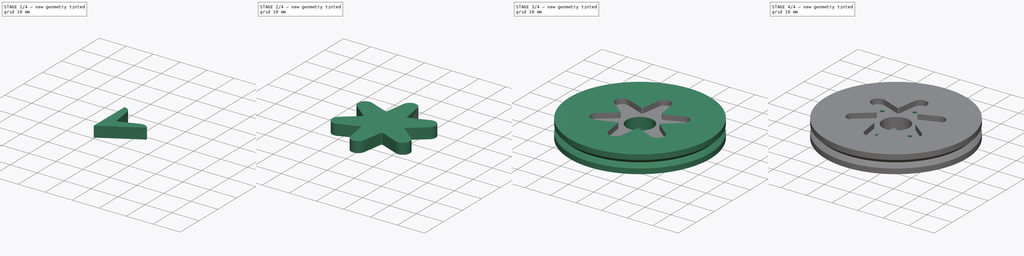
[diagram: build sequence overview — one tinted view per stage of 4, left to right]
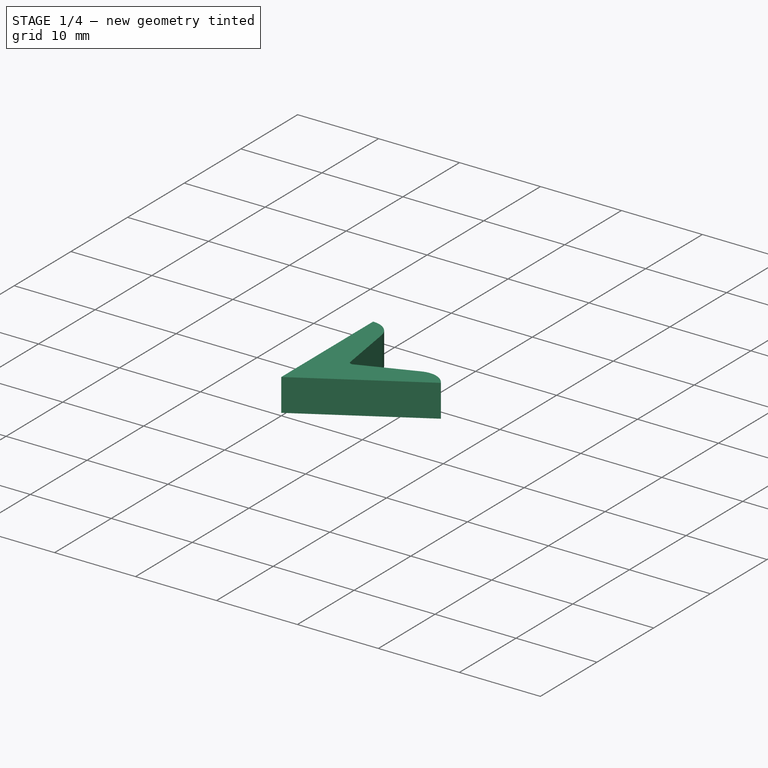
[diagram: stage 1 of 4 — iso view after this stage's code; geometry added in this stage tinted green]
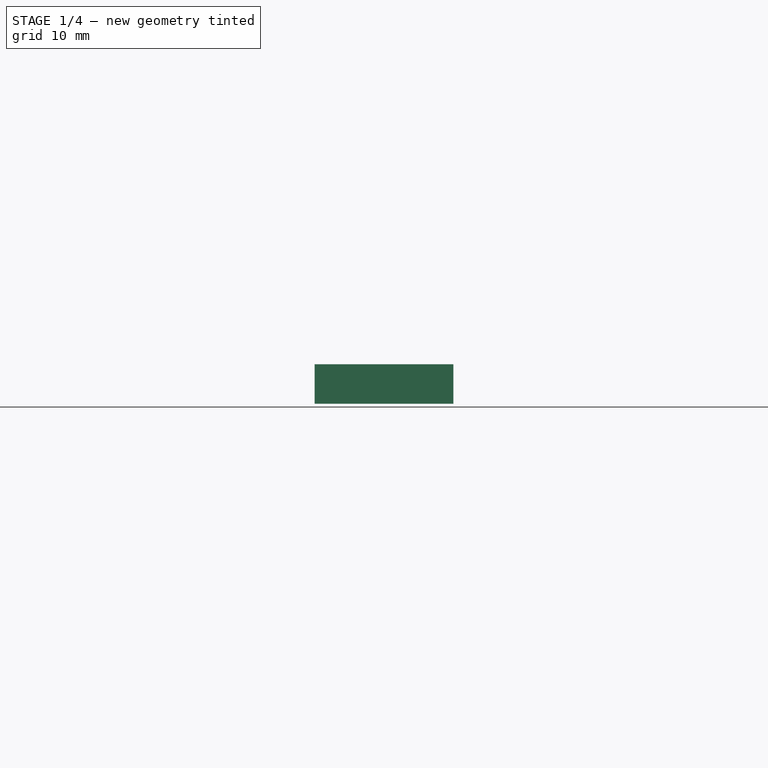
[diagram: stage 1 of 4 — front view after this stage's code; geometry added in this stage tinted green]
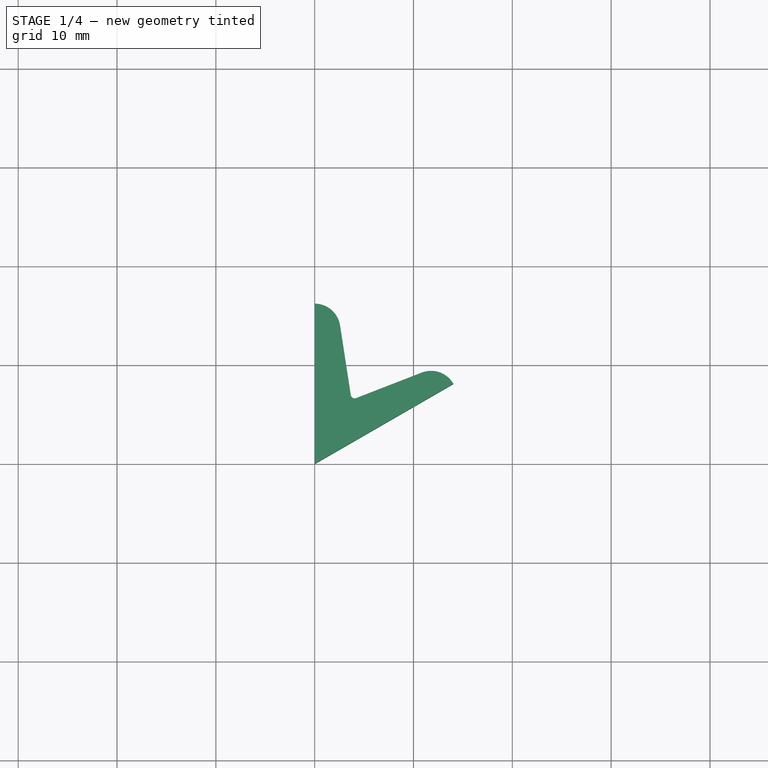
[diagram: stage 1 of 4 — top view after this stage's code; geometry added in this stage tinted green]
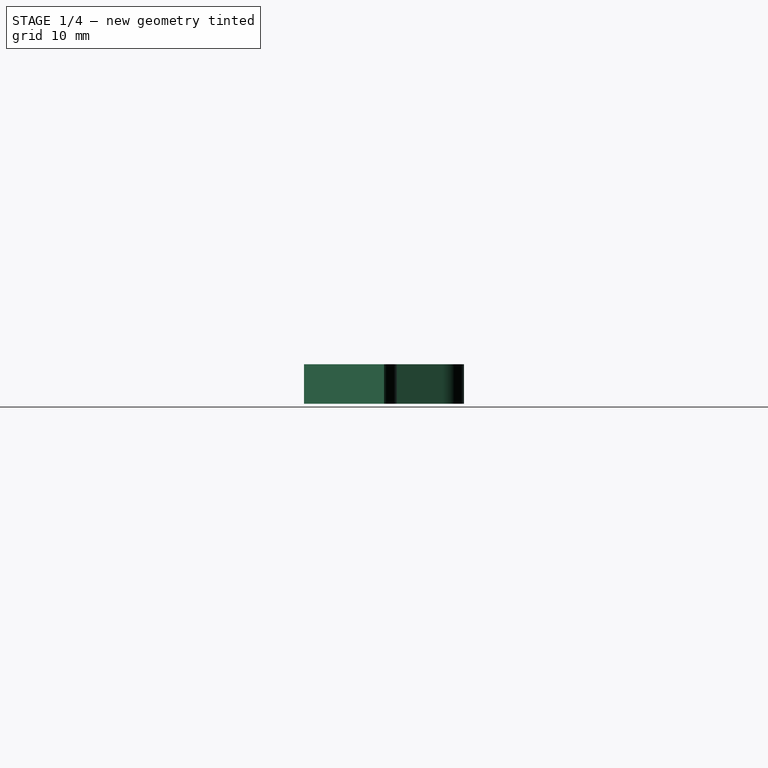
[diagram: stage 1 of 4 — right view after this stage's code; geometry added in this stage tinted green]
FCSTD DOCUMENT  (FreeCAD 0.14R3702 (Git))
Label: Miniskybot-wheel-futaba3003-6-arms-horn
License: CC-BY 3.0
LicenseURL: http://creativecommons.org/licenses/by/3.0/
objects: Sketcher::SketchObject×4, Part::Feature×3, Part::MultiFuse×2, PartDesign::Pocket×2, PartDesign::Revolution×1, PartDesign::Pad×1, Part::Mirroring×1, Part::Cut×1, PartDesign::PolarPattern×1
note: 20 computed .brp shape members not serialized (recipe doc carries the construction recipe); baked Part::Feature solids carry a one-line shape summary decoded from their .brp

FEATURE [Sketcher::SketchObject] Sketch001  label="6-arms-master-sketch-offset"
  sketch-geometry (8):
    g0: LineSegment StartX=0 StartY=0 StartZ=0 EndX=-14.0296 EndY=8.1 EndZ=0
    g1: LineSegment StartX=0 StartY=0 StartZ=0 EndX=0 EndY=16.2 EndZ=0
    g2: ArcOfCircle CenterX=0 CenterY=13.6 CenterZ=0 NormalX=0 NormalY=0 NormalZ=1 Radius=2.6 StartAngle=1.5708 EndAngle=2.98873
    g3: ArcOfCircle CenterX=-11.7779 CenterY=6.8 CenterZ=0 NormalX=0 NormalY=0 NormalZ=1 Radius=2.6 StartAngle=1.20006 EndAngle=2.61799
    g4: LineSegment [constr] StartX=-3.85 StartY=6.6684 StartZ=0 EndX=0 EndY=0 EndZ=0
    g5: LineSegment StartX=-2.56968 StartY=13.9959 StartZ=0 EndX=-3.65466 EndY=6.9539 EndZ=0
    g6: LineSegment StartX=-10.836 StartY=9.22336 StartZ=0 EndX=-4.19492 EndY=6.64198 EndZ=0
    g7: ArcOfCircle CenterX=-4.05 CenterY=7.01481 CenterZ=0 NormalX=0 NormalY=0 NormalZ=1 Radius=0.4 StartAngle=4.34166 EndAngle=6.13031
  constraints (24):
    c: Vertical(g1)
    c: Coincident(g1,g0)
    c: Coincident(g0,g-1)
    c: Angle(g1,g0) = 1.0472
    c: Equal(g0,g1)
    c: DistanceY(g1) = 16.2
    c: PointOnObject(g2,g1)
    c: Coincident(g2,g1)
    c: PointOnObject(g3,g0)
    c: Coincident(g3,g0)
    c: Coincident(g4,g-1)
    c: Angle(g1,g4) = 0.523599
    c: Distance(g4) = 7.7
    c: Equal(g3,g2)
    c: Coincident(g5,g2)
    c: Coincident(g6,g3)
    c: Tangent(g5,g7)
    c: Tangent(g6,g7)
    c: PointOnObject(g7,g4)
    c: PointOnObject(g4,g7)
    c: Radius(g7) = 0.4
    c: Tangent(g3,g6)
    c: Tangent(g2,g5)
    c: Radius(g2) = 2.6
FEATURE [PartDesign::Pad] Pad  label="6-arms-horn-one-sixth-master"
  Length = 4
  Length2 = 100
  Sketch = -> Sketch001
  Type = 0
FEATURE [Part::Mirroring] Part__Mirroring  label="6-arms-horn-one-sixth-master (Mirror #1)"
  Base = (0,0,0)
  Normal = (1,0,0)
  Source = -> Pad
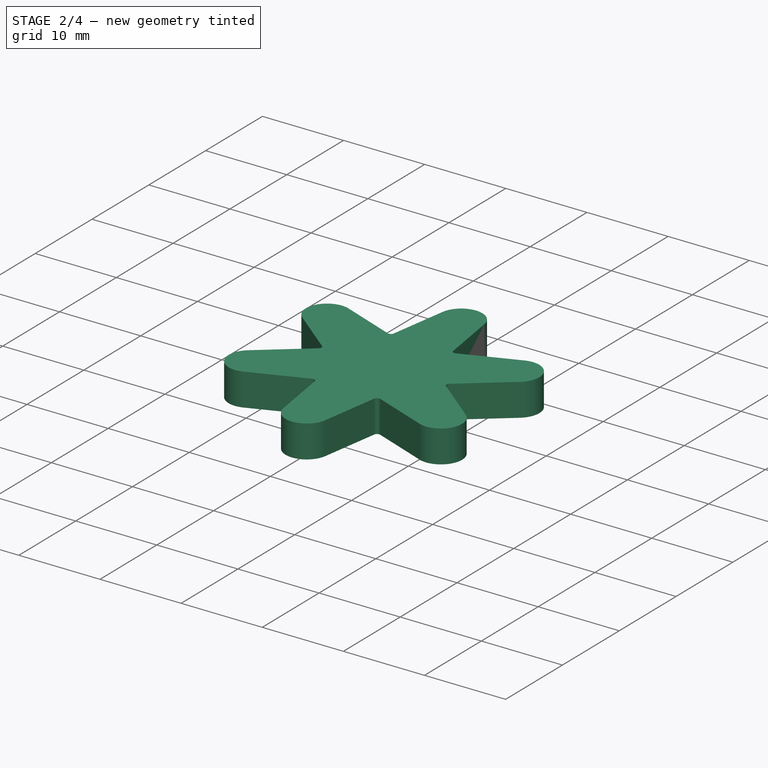
[diagram: stage 2 of 4 — iso view after this stage's code; geometry added in this stage tinted green]
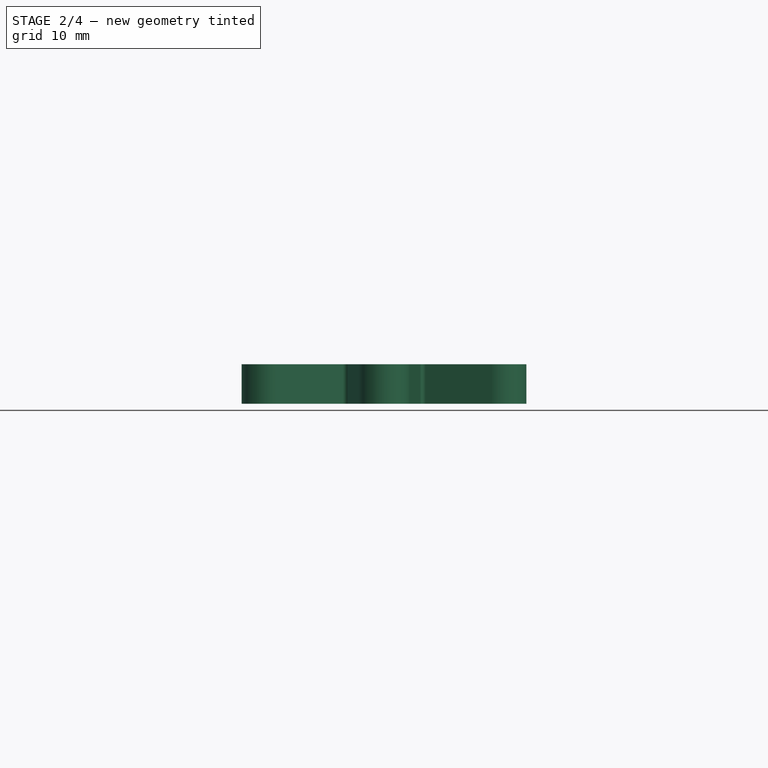
[diagram: stage 2 of 4 — front view after this stage's code; geometry added in this stage tinted green]
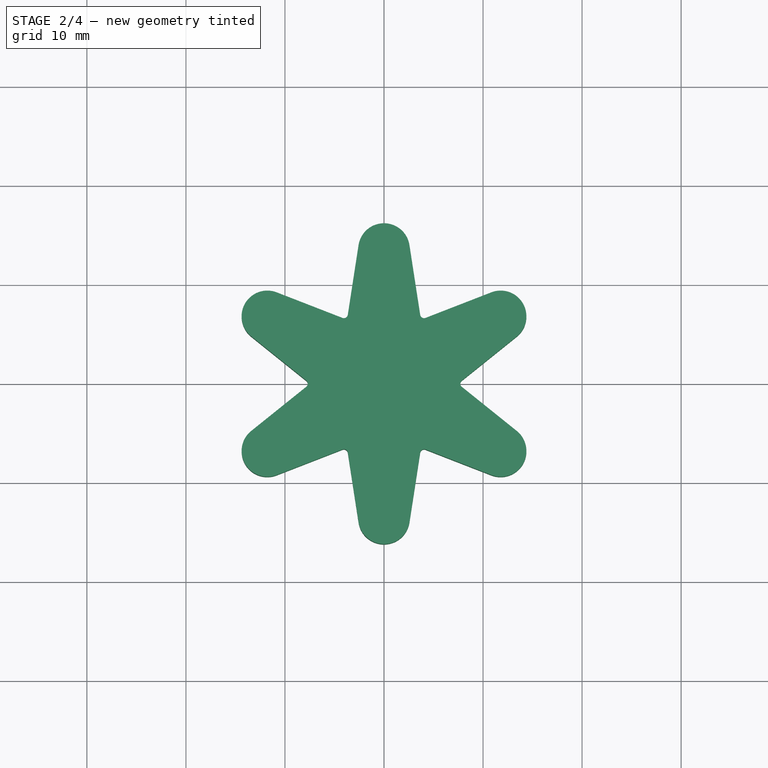
[diagram: stage 2 of 4 — top view after this stage's code; geometry added in this stage tinted green]
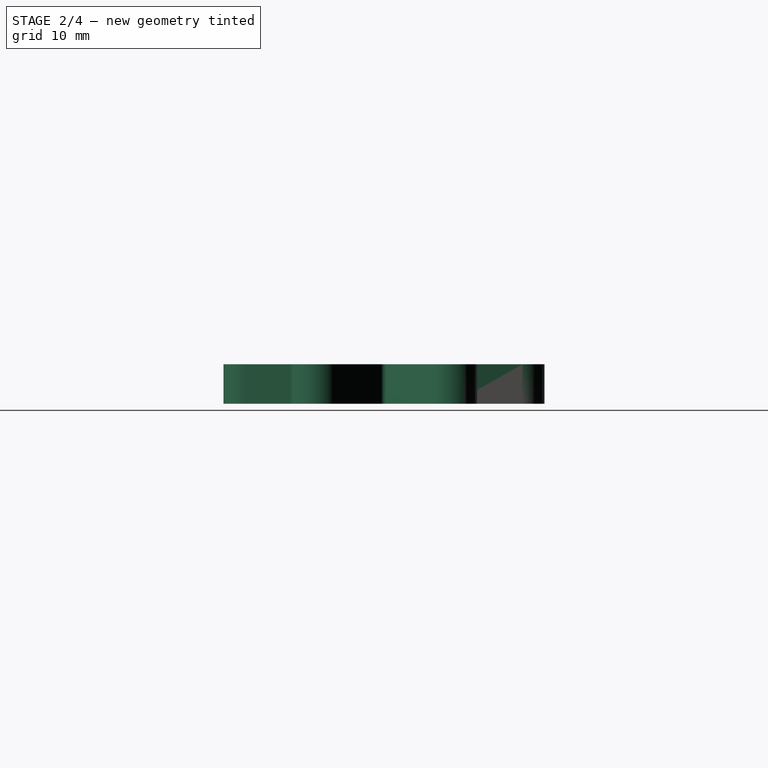
[diagram: stage 2 of 4 — right view after this stage's code; geometry added in this stage tinted green]
FEATURE [Part::MultiFuse] Fusion  label="6-arms-horn-one-third-master"
  Shapes = -> [Part__Mirroring,Pad]
FEATURE [Part::Feature] Fusion001  label="6-arms-horn-one-third-2"
  Placement = pos=(0,0,0) rot=(0,0,1;2.0944rad)
  shape: bbox 14.38 x 24.3 x 4 mm, 13 faces (baked)
FEATURE [Part::Feature] Fusion002  label="6-arms-horn-one-third-3"
  Placement = pos=(0,0,0) rot=(0,0,1;4.18879rad)
  shape: bbox 14.38 x 24.3 x 4 mm, 13 faces (baked)
FEATURE [Part::MultiFuse] Fusion003  label="6-arms-horn-master"
  Placement = pos=(0,0,1.5) rot=(0,0,1;0rad)
  Shapes = -> [Fusion,Fusion002,Fusion001]
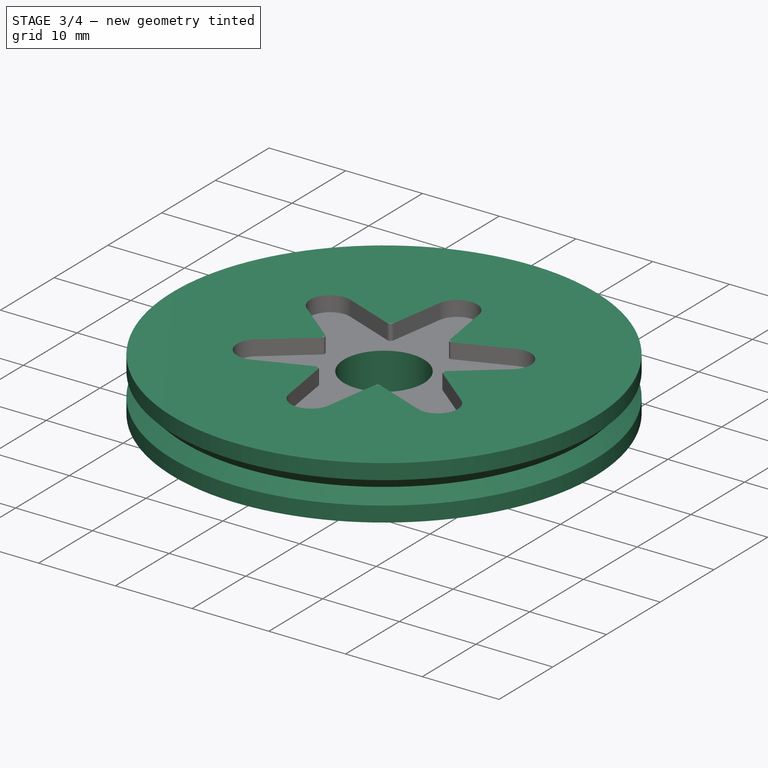
[diagram: stage 3 of 4 — iso view after this stage's code; geometry added in this stage tinted green]
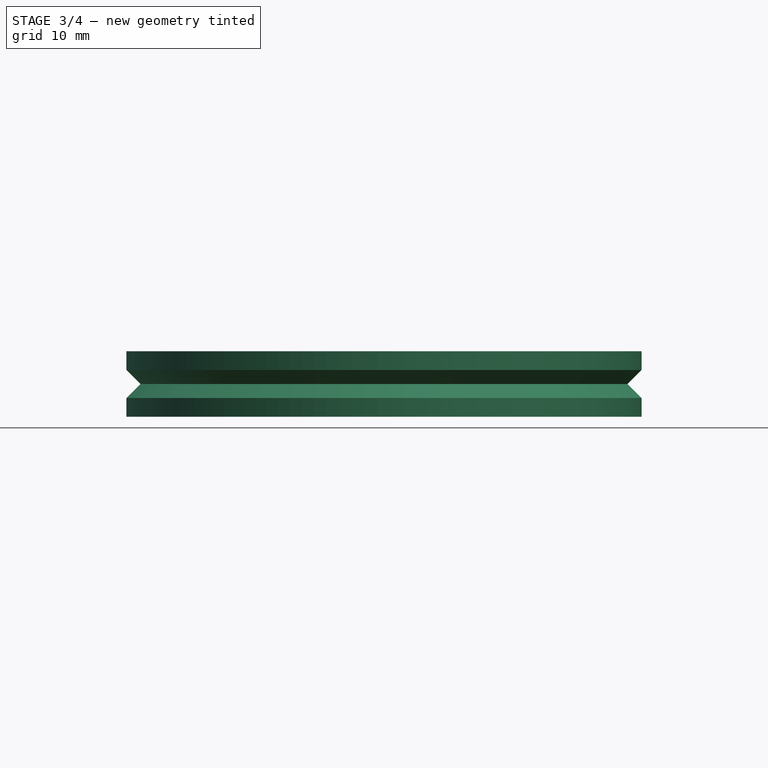
[diagram: stage 3 of 4 — front view after this stage's code; geometry added in this stage tinted green]
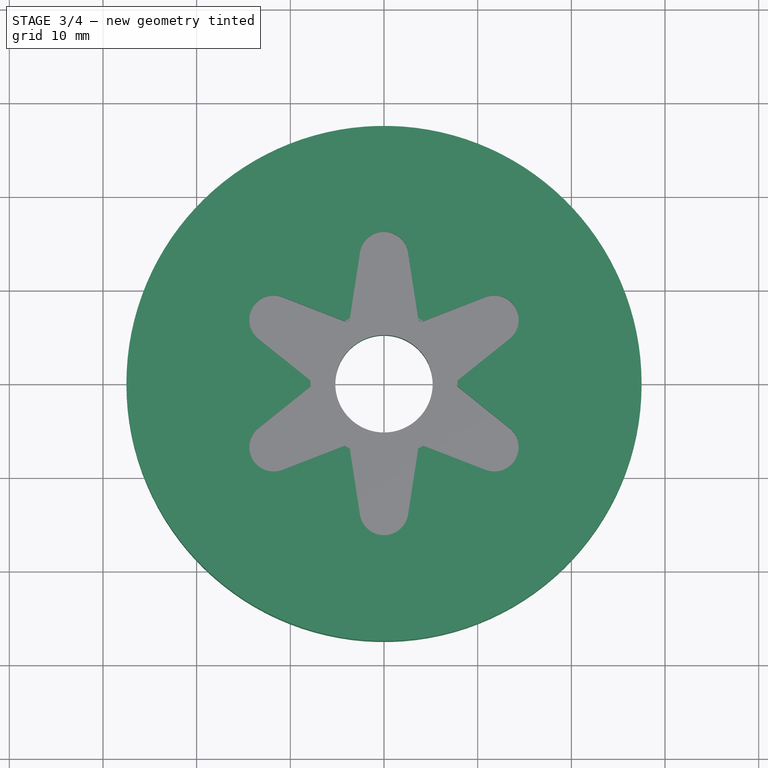
[diagram: stage 3 of 4 — top view after this stage's code; geometry added in this stage tinted green]
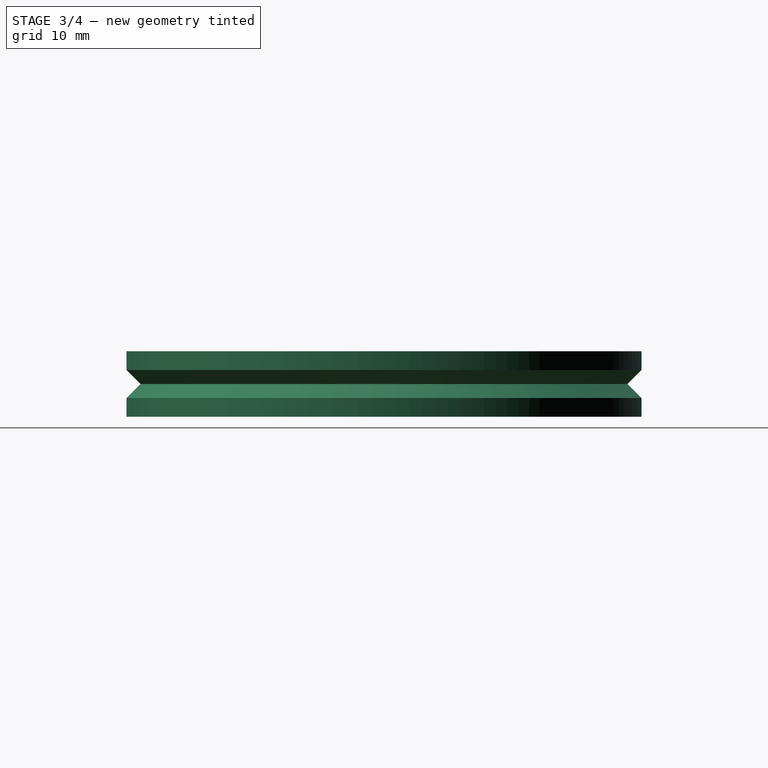
[diagram: stage 3 of 4 — right view after this stage's code; geometry added in this stage tinted green]
FEATURE [Sketcher::SketchObject] Sketch  label="wheel-generic-sketch"
  Placement = pos=(0,0,0) rot=(1,0,0;1.5708rad)
  sketch-geometry (7):
    g0: LineSegment StartX=0 StartY=-3.5 StartZ=0 EndX=0 EndY=3.5 EndZ=0
    g1: LineSegment StartX=0 StartY=3.5 StartZ=0 EndX=27.5 EndY=3.5 EndZ=0
    g2: LineSegment StartX=27.5 StartY=3.5 StartZ=0 EndX=27.5 EndY=1.5 EndZ=0
    g3: LineSegment StartX=27.5 StartY=1.5 StartZ=0 EndX=26 EndY=0 EndZ=0
    g4: LineSegment StartX=26 StartY=0 StartZ=0 EndX=27.5 EndY=-1.5 EndZ=0
    g5: LineSegment StartX=27.5 StartY=-1.5 StartZ=0 EndX=27.5 EndY=-3.5 EndZ=0
    g6: LineSegment StartX=27.5 StartY=-3.5 StartZ=0 EndX=0 EndY=-3.5 EndZ=0
  constraints (20):
    c: Vertical(g0)
    c: Coincident(g0,g1)
    c: Horizontal(g1)
    c: Coincident(g1,g2)
    c: Vertical(g2)
    c: Coincident(g2,g3)
    c: Coincident(g3,g4)
    c: Coincident(g4,g5)
    c: Coincident(g5,g6)
    c: Coincident(g6,g0)
    c: Horizontal(g6)
    c: Vertical(g5)
    c: PointOnObject(g0,g-2)
    c: Symmetric(g0,g0,g-1)
    c: PointOnObject(g3,g-1)
    c: Symmetric(g4,g2,g-1)
    c: Angle(g3,g-1) = 2.35619
    c: DistanceY(g4,g2) = 3
    c: DistanceX(g1) = 27.5
    c: DistanceY(g0) = 7
FEATURE [PartDesign::Revolution] Revolution  label="wheel-generic"
  Angle = 360
  Axis = (0,0,1)
  Base = (0,0,0)
  Placement = pos=(0,0,0) rot=(1,0,0;1.5708rad)
  ReferenceAxis = -> Sketch [V_Axis]
  Reversed = true
  Sketch = -> Sketch
FEATURE [Part::Cut] Cut  label="wheel-1"
  Base = -> Revolution
  Tool = -> Fusion003
FEATURE [Sketcher::SketchObject] Sketch004  label="shaft-drill-sketch"
  Placement = pos=(0,0,1.5) rot=(0,0,1;0rad)
  Support = -> Cut [Face30]
  sketch-geometry (1):
    g0: Circle CenterX=0 CenterY=0 CenterZ=0 NormalX=0 NormalY=0 NormalZ=1 Radius=5.2
  constraints (1):
    c: Radius(g0) = 5.2
FEATURE [PartDesign::Pocket] Pocket  label="shaft-drill"
  Length = 5
  Sketch = -> Sketch004
  Type = 1
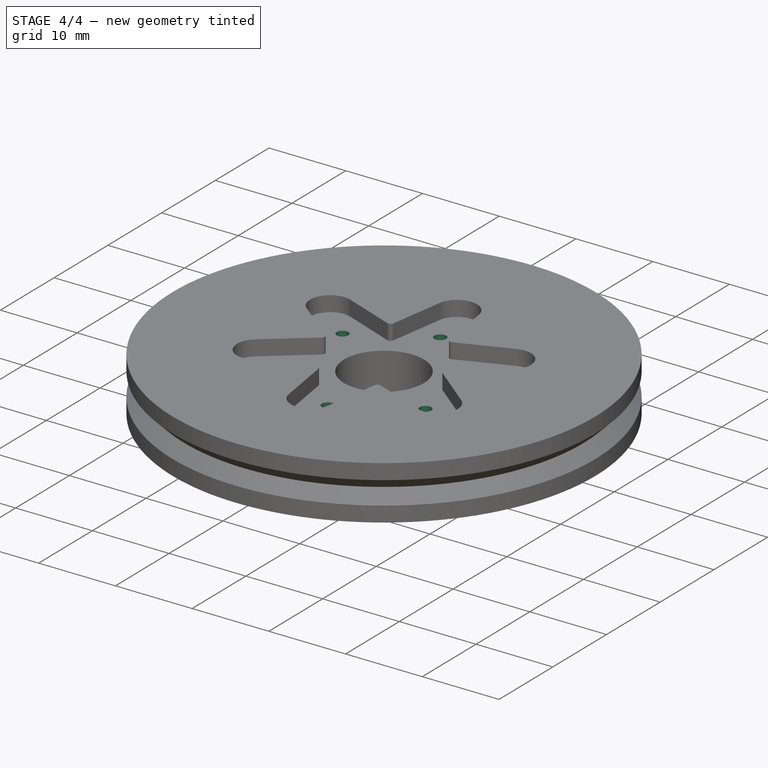
[diagram: stage 4 of 4 — iso view after this stage's code; geometry added in this stage tinted green]
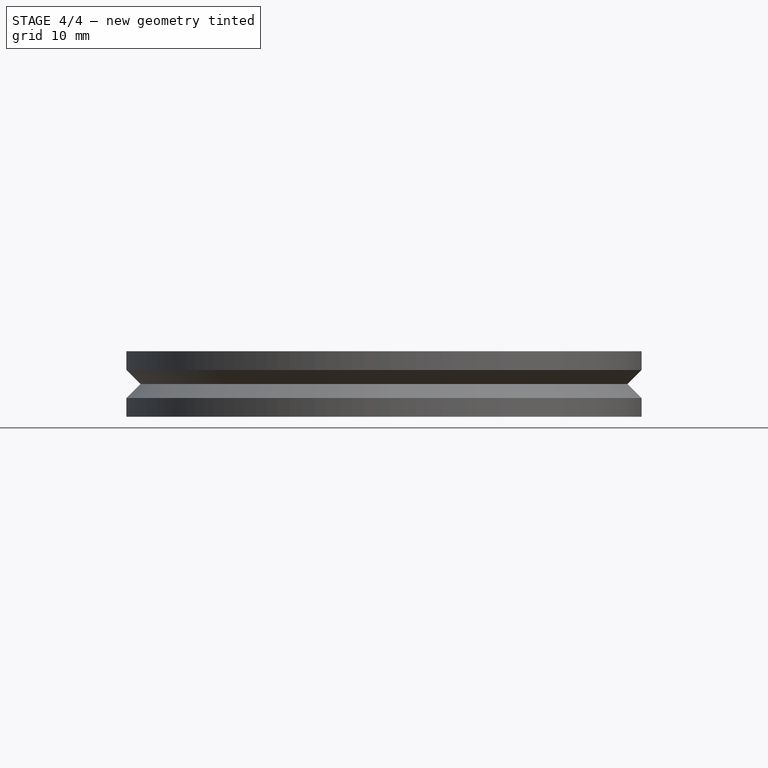
[diagram: stage 4 of 4 — front view after this stage's code; geometry added in this stage tinted green]
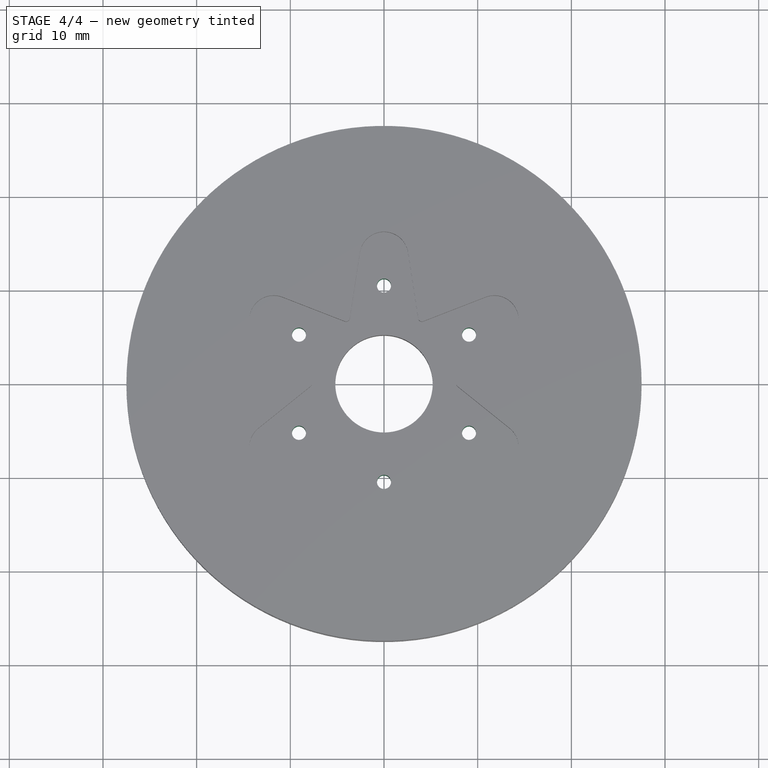
[diagram: stage 4 of 4 — top view after this stage's code; geometry added in this stage tinted green]
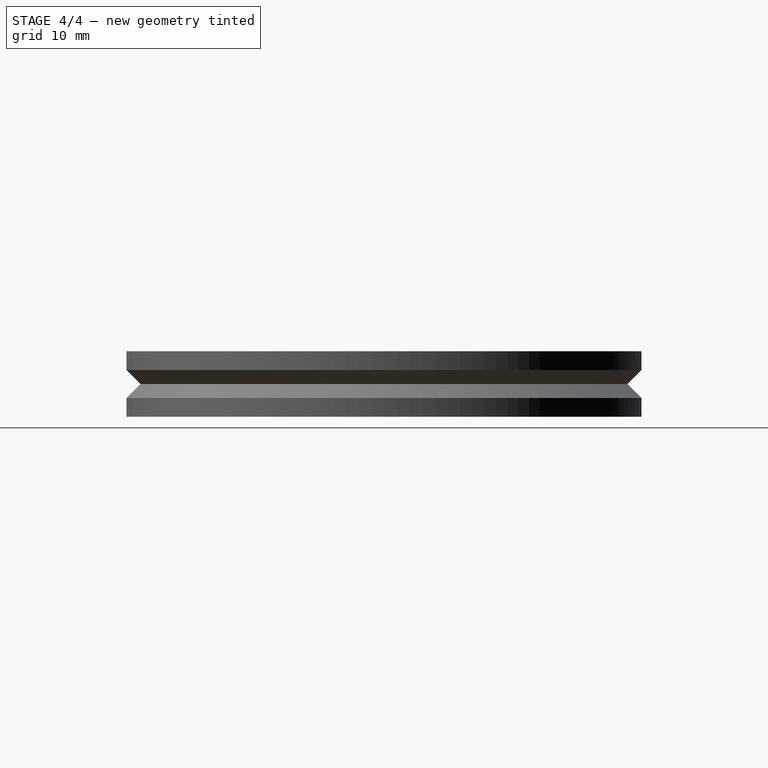
[diagram: stage 4 of 4 — right view after this stage's code; geometry added in this stage tinted green]
FEATURE [Sketcher::SketchObject] Sketch003  label="arm-drills-master-sketch"
  Placement = pos=(0,0,1.5) rot=(0,0,1;0rad)
  Support = -> Pocket [Face30]
  sketch-geometry (1):
    g0: Circle CenterX=0 CenterY=10.48 CenterZ=0 NormalX=0 NormalY=0 NormalZ=1 Radius=0.75
  constraints (3):
    c: PointOnObject(g0,g-2)
    c: DistanceY(g-1,g0) = 10.48
    c: Radius(g0) = 0.75
FEATURE [PartDesign::Pocket] Pocket001  label="arm-drill-master"
  Length = 5
  Sketch = -> Sketch003
  Type = 1
FEATURE [PartDesign::PolarPattern] PolarPattern
  Angle = 360
  Axis = -> Sketch003 [N_Axis]
  Occurrences = 6
  Originals = -> [Pocket001]
FEATURE [Part::Feature] PolarPattern001  label="Wheel-futaba-30036-6-arms-horn-final"
  shape: bbox 55 x 55 x 7 mm, 40 faces (baked)
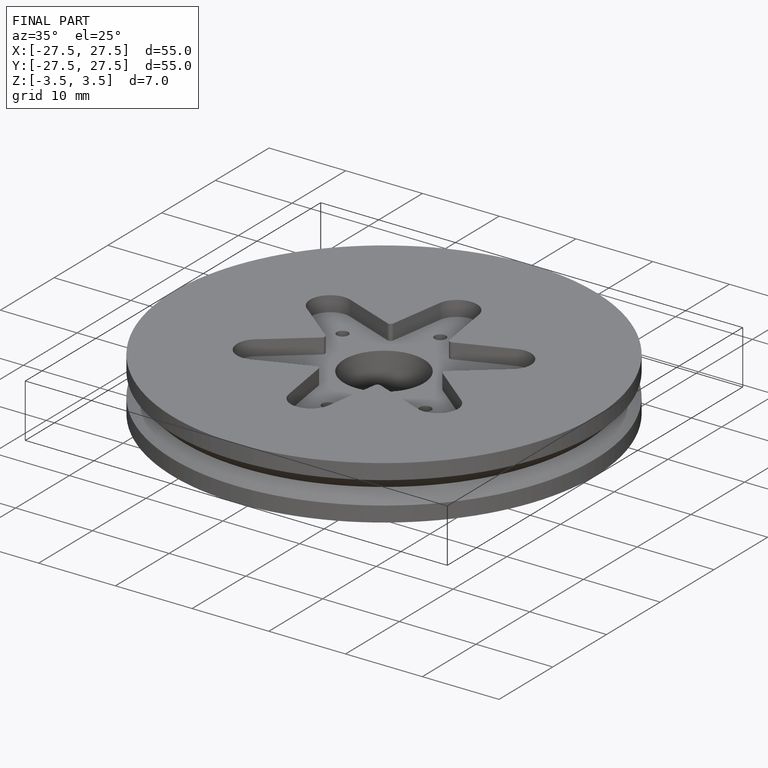
[diagram: finished part — iso view with bounding-box wireframe]
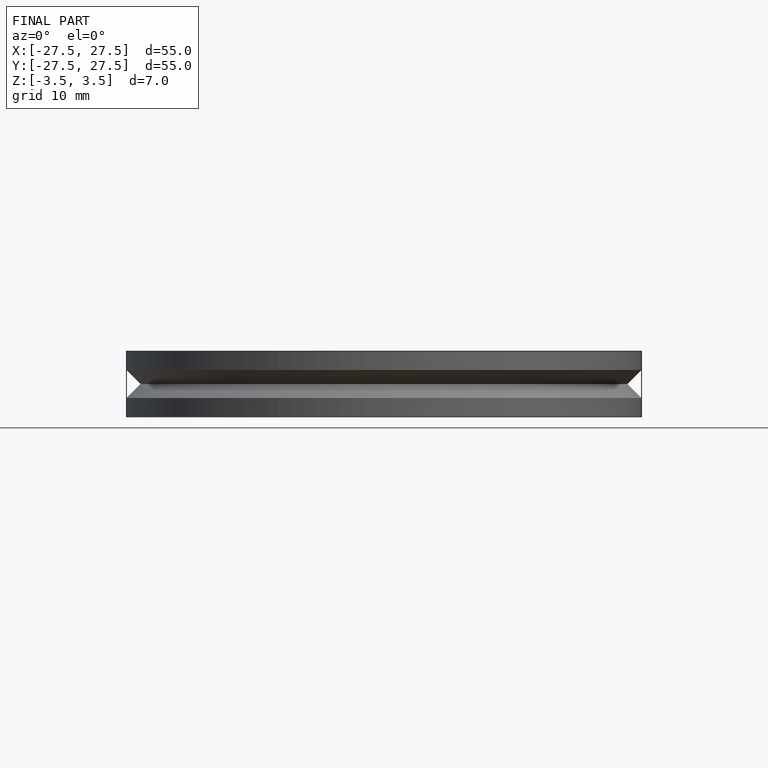
[diagram: finished part — front view with bounding-box wireframe]
